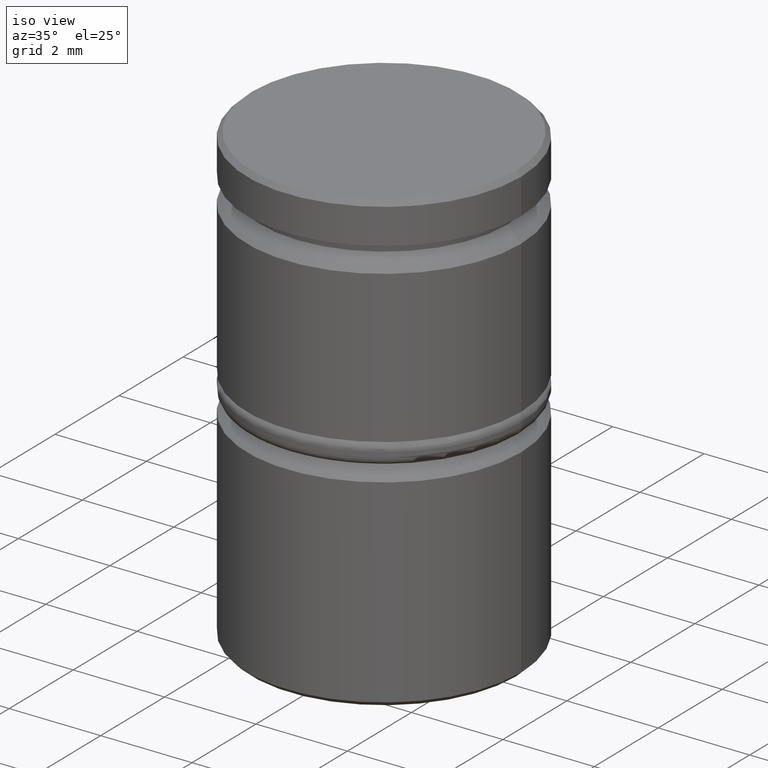
[diagram: clean part render]
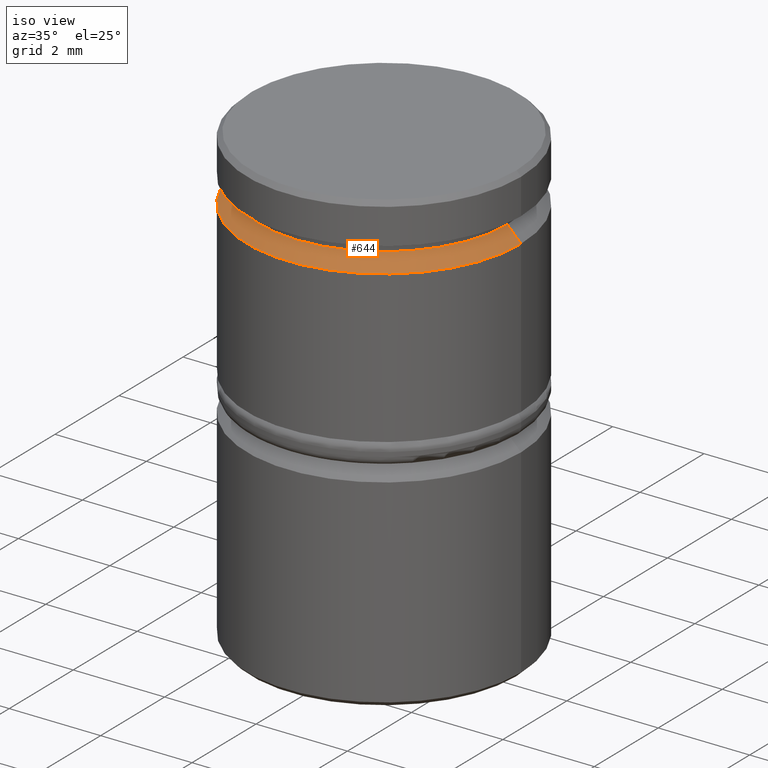
[diagram: same view with one face highlighted and labeled with its STEP entity id]
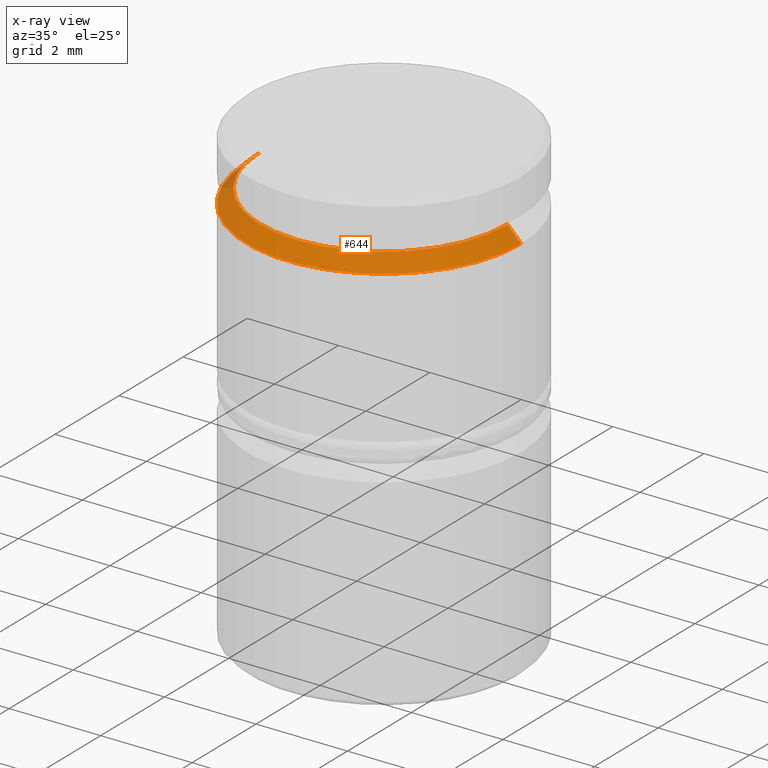
[diagram: x-ray of the same camera — body ghosted, the highlighted face saturated]
A machine part, iso view. The second image highlights one B-rep face of the part: STEP entity #644.
The next image is the same camera in x-ray: the body ghosted, the highlighted face saturated — about 2% of this face is hidden behind the body in this view.
In plain terms, the highlighted conical surface has half-angle 45 deg.
Its self-contained STEP definition (entity closure, byte-faithful):
#11 = CARTESIAN_POINT ( 'NONE',  ( 3.000000000000000000, 0.000000000000000000, -1.424999999999995381 ) ) ;
#34 = EDGE_CURVE ( 'NONE', #214, #67, #185, .T. ) ;
#41 = CONICAL_SURFACE ( 'NONE', #952, 2.700000000000005063, 0.7853981633974482790 ) ;
#67 = VERTEX_POINT ( 'NONE', #1084 ) ;
#126 = CARTESIAN_POINT ( 'NONE',  ( 0.000000000000000000, 0.000000000000000000, -1.125000000000000222 ) ) ;
#154 = CIRCLE ( 'NONE', #1110, 2.700000000000000178 ) ;
#185 = CIRCLE ( 'NONE', #520, 3.000000000000000000 ) ;
#200 = CARTESIAN_POINT ( 'NONE',  ( -2.700000000000005063, 0.000000000000000000, -1.125000000000000222 ) ) ;
#214 = VERTEX_POINT ( 'NONE', #11 ) ;
#243 = CARTESIAN_POINT ( 'NONE',  ( 0.000000000000000000, 0.000000000000000000, -1.424999999999995381 ) ) ;
#364 = EDGE_CURVE ( 'NONE', #729, #67, #1010, .T. ) ;
#425 = DIRECTION ( 'NONE',  ( 0.000000000000000000, 0.000000000000000000, -1.000000000000000000 ) ) ;
#459 = CARTESIAN_POINT ( 'NONE',  ( 0.000000000000000000, 0.000000000000000000, -1.125000000000000222 ) ) ;
#520 = AXIS2_PLACEMENT_3D ( 'NONE', #243, #425, #966 ) ;
#557 = DIRECTION ( 'NONE',  ( -0.000000000000000000, -0.000000000000000000, 1.000000000000000000 ) ) ;
#562 = DIRECTION ( 'NONE',  ( -0.7071067811865474617, 0.000000000000000000, -0.7071067811865474617 ) ) ;
#609 = LINE ( 'NONE', #622, #1151 ) ;
#617 = CARTESIAN_POINT ( 'NONE',  ( -2.700000000000000178, 3.306546357697853733E-16, -1.125000000000000222 ) ) ;
#622 = CARTESIAN_POINT ( 'NONE',  ( 2.700000000000005063, 3.306546357697859650E-16, -1.125000000000000222 ) ) ;
#644 = ADVANCED_FACE ( 'NONE', ( #690 ), #41, .T. ) ;
#686 = DIRECTION ( 'NONE',  ( 0.000000000000000000, 0.000000000000000000, -1.000000000000000000 ) ) ;
#690 = FACE_OUTER_BOUND ( 'NONE', #875, .T. ) ;
#712 = ORIENTED_EDGE ( 'NONE', *, *, #814, .F. ) ;
#729 = VERTEX_POINT ( 'NONE', #617 ) ;
#777 = ORIENTED_EDGE ( 'NONE', *, *, #1136, .F. ) ;
#814 = EDGE_CURVE ( 'NONE', #729, #964, #154, .T. ) ;
#820 = VECTOR ( 'NONE', #562, 1000.000000000000114 ) ;
#875 = EDGE_LOOP ( 'NONE', ( #777, #712, #1141, #1109 ) ) ;
#913 = CARTESIAN_POINT ( 'NONE',  ( 2.700000000000000178, 0.000000000000000000, -1.125000000000000222 ) ) ;
#949 = DIRECTION ( 'NONE',  ( -1.000000000000000000, 0.000000000000000000, 0.000000000000000000 ) ) ;
#952 = AXIS2_PLACEMENT_3D ( 'NONE', #126, #686, #949 ) ;
#964 = VERTEX_POINT ( 'NONE', #913 ) ;
#966 = DIRECTION ( 'NONE',  ( 1.000000000000000000, 0.000000000000000000, 0.000000000000000000 ) ) ;
#975 = DIRECTION ( 'NONE',  ( 0.7071067811865474617, 8.659560562354932858E-17, -0.7071067811865474617 ) ) ;
#1010 = LINE ( 'NONE', #200, #820 ) ;
#1084 = CARTESIAN_POINT ( 'NONE',  ( -3.000000000000000000, 3.673940397442059868E-16, -1.424999999999995381 ) ) ;
#1109 = ORIENTED_EDGE ( 'NONE', *, *, #34, .F. ) ;
#1110 = AXIS2_PLACEMENT_3D ( 'NONE', #459, #557, #1111 ) ;
#1111 = DIRECTION ( 'NONE',  ( 1.000000000000000000, 0.000000000000000000, 0.000000000000000000 ) ) ;
#1136 = EDGE_CURVE ( 'NONE', #964, #214, #609, .T. ) ;
#1141 = ORIENTED_EDGE ( 'NONE', *, *, #364, .T. ) ;
#1151 = VECTOR ( 'NONE', #975, 1000.000000000000114 ) ;